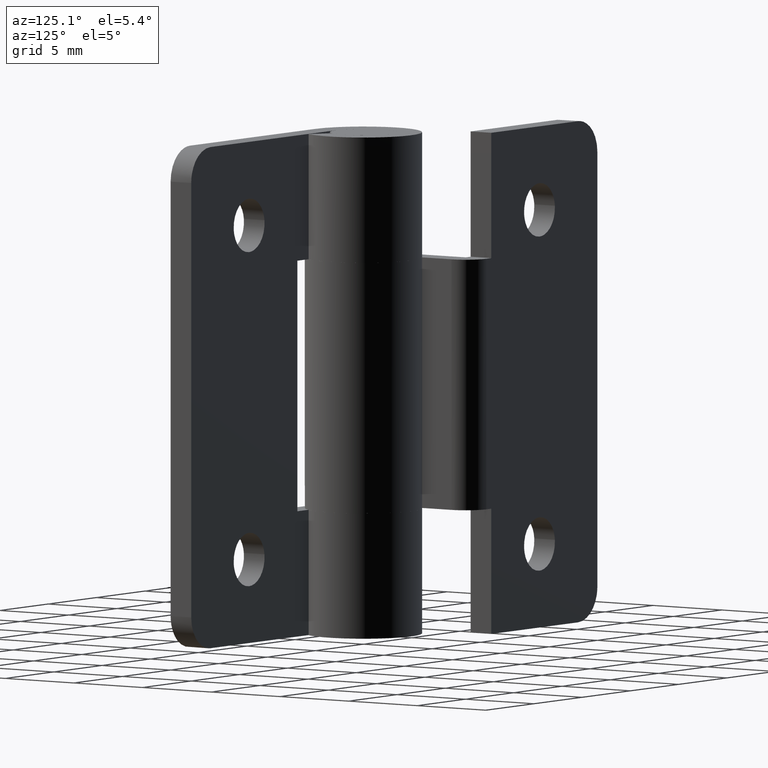
[diagram: clean part render]
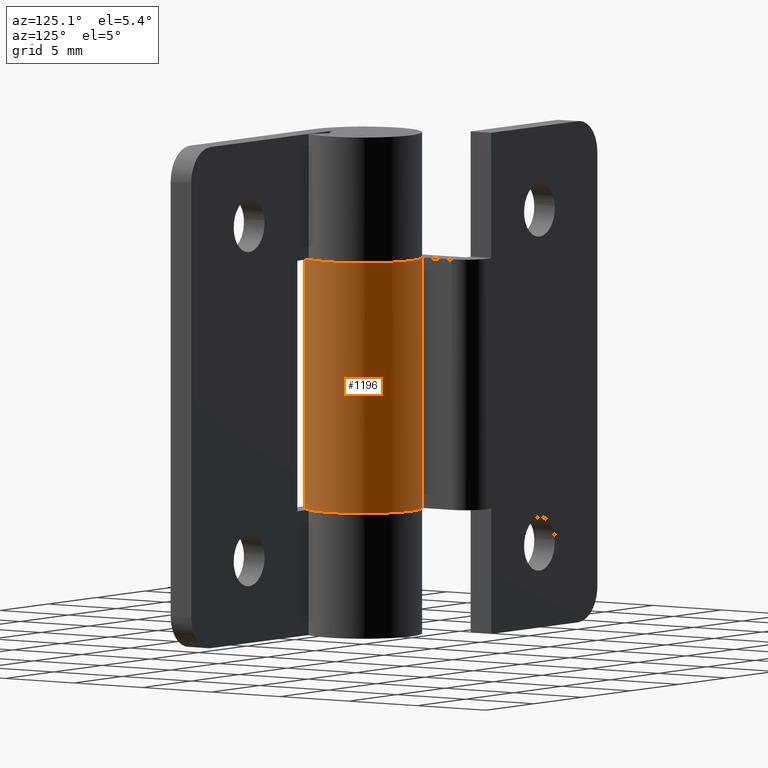
[diagram: same view with one face highlighted and labeled with its STEP entity id]
A machine part, auxiliary view. The second image highlights one B-rep face of the part: STEP entity #1196.
In plain terms, the highlighted face is a freeform B-spline surface patch.
Its self-contained STEP definition (entity closure, byte-faithful):
#734=CARTESIAN_POINT('',(-1.950000557143180,2.906456747853360,7.500000000000000));
#735=VERTEX_POINT('',#734);
#741=CARTESIAN_POINT('',(-3.499999000000000,-4.286121E-016,7.500000000000000));
#742=VERTEX_POINT('',#741);
#743=CARTESIAN_POINT('',(-1.950000557143179,2.906456747853353,7.500000000000000));
#744=CARTESIAN_POINT('',(0.319327331446173,4.428994680116801,7.500000000000001));
#745=CARTESIAN_POINT('',(2.346771502704649,2.596662572244296,7.500000000000000));
#746=CARTESIAN_POINT('',(4.374215673963122,0.764330464371792,7.500000000000001));
#747=CARTESIAN_POINT('',(3.088283746678855,-1.646965846640486,7.500000000000000));
#748=CARTESIAN_POINT('',(1.802351819394588,-4.058262157652765,7.500000000000001));
#749=CARTESIAN_POINT('',(-0.848823590302704,-3.395510493658741,7.500000000000000));
#750=CARTESIAN_POINT('',(-3.499999000000000,-2.732758829664717,7.500000000000001));
#751=CARTESIAN_POINT('',(-3.499999000000000,0.0,7.500000000000000));
#759=(BOUNDED_CURVE()B_SPLINE_CURVE(2,(#743,#744,#745,#746,#747,#748,#749,#750,#751),.UNSPECIFIED.,.F.,.U.)B_SPLINE_CURVE_WITH_KNOTS((3,2,2,2,3),(0.0,0.250000000000000,0.500000000000000,0.750000000000000,1.0),.UNSPECIFIED.)CURVE()GEOMETRIC_REPRESENTATION_ITEM()RATIONAL_B_SPLINE_CURVE((1.0,0.788200829450374,1.0,0.788200829450374,1.0,0.788200829450374,1.0,0.788200829450374,1.0))REPRESENTATION_ITEM(''));
#760=EDGE_CURVE('',#735,#742,#759,.T.);
#812=CARTESIAN_POINT('',(-3.499999000000000,0.0,22.500000000000000));
#813=VERTEX_POINT('',#812);
#819=CARTESIAN_POINT('',(-1.950000557143180,2.906456747853360,22.500000000000000));
#820=VERTEX_POINT('',#819);
#821=CARTESIAN_POINT('',(-3.499999000000000,0.0,22.500000000000000));
#822=CARTESIAN_POINT('',(-3.499999000000000,-2.732758829664714,22.500000000000004));
#823=CARTESIAN_POINT('',(-0.848823590302708,-3.395510493658741,22.500000000000000));
#824=CARTESIAN_POINT('',(1.802351819394584,-4.058262157652766,22.500000000000004));
#825=CARTESIAN_POINT('',(3.088283746678854,-1.646965846640489,22.500000000000000));
#826=CARTESIAN_POINT('',(4.374215673963124,0.764330464371790,22.500000000000004));
#827=CARTESIAN_POINT('',(2.346771502704650,2.596662572244296,22.500000000000000));
#828=CARTESIAN_POINT('',(0.319327331446177,4.428994680116800,22.500000000000004));
#829=CARTESIAN_POINT('',(-1.950000557143176,2.906456747853356,22.500000000000000));
#837=(BOUNDED_CURVE()B_SPLINE_CURVE(2,(#821,#822,#823,#824,#825,#826,#827,#828,#829),.UNSPECIFIED.,.F.,.U.)B_SPLINE_CURVE_WITH_KNOTS((3,2,2,2,3),(0.0,0.250000000000000,0.500000000000000,0.750000000000000,1.0),.UNSPECIFIED.)CURVE()GEOMETRIC_REPRESENTATION_ITEM()RATIONAL_B_SPLINE_CURVE((1.0,0.788200829450374,1.0,0.788200829450374,1.0,0.788200829450374,1.0,0.788200829450374,1.0))REPRESENTATION_ITEM(''));
#838=EDGE_CURVE('',#813,#820,#837,.T.);
#1150=CARTESIAN_POINT('',(-3.499999000000000,0.0,22.500000000000000));
#1151=CARTESIAN_POINT('',(-3.499999000000000,-4.286121E-016,7.500000000000000));
#1152=QUASI_UNIFORM_CURVE('',1,(#1150,#1151),.UNSPECIFIED.,.F.,.U.);
#1153=EDGE_CURVE('',#813,#742,#1152,.T.);
#1164=CARTESIAN_POINT('',(-3.498562629029877,0.100262309750720,22.875000000000000));
#1165=CARTESIAN_POINT('',(-3.498562629029877,0.100262309750720,7.115625000000000));
#1166=CARTESIAN_POINT('',(-3.625364992771855,-4.324391502467664,22.875000000000004));
#1167=CARTESIAN_POINT('',(-3.625364992771855,-4.324391502467664,7.115625000000000));
#1168=CARTESIAN_POINT('',(0.709264340825263,-3.427380500445595,22.875000000000000));
#1169=CARTESIAN_POINT('',(0.709264340825263,-3.427380500445595,7.115625000000000));
#1170=CARTESIAN_POINT('',(5.043893674422381,-2.530369498423525,22.875000000000004));
#1171=CARTESIAN_POINT('',(5.043893674422381,-2.530369498423525,7.115625000000000));
#1172=CARTESIAN_POINT('',(3.171427401937915,1.480554367201123,22.875000000000000));
#1173=CARTESIAN_POINT('',(3.171427401937915,1.480554367201123,7.115625000000000));
#1174=CARTESIAN_POINT('',(1.298961129453449,5.491478232825772,22.875000000000004));
#1175=CARTESIAN_POINT('',(1.298961129453449,5.491478232825772,7.115625000000000));
#1176=CARTESIAN_POINT('',(-2.172027324413957,2.744501831298376,22.875000000000000));
#1177=CARTESIAN_POINT('',(-2.172027324413957,2.744501831298376,7.115625000000000));
#1185=(BOUNDED_SURFACE()B_SPLINE_SURFACE(1,2,((#1164,#1166,#1168,#1170,#1172,#1174,#1176),(#1165,#1167,#1169,#1171,#1173,#1175,#1177)),.UNSPECIFIED.,.F.,.F.,.U.)B_SPLINE_SURFACE_WITH_KNOTS((2,2),(3,2,2,3),(0.0,15.759375000000000),(0.0,6.777913599840503,13.555827199681010,20.333740799521511),.UNSPECIFIED.)GEOMETRIC_REPRESENTATION_ITEM()RATIONAL_B_SPLINE_SURFACE(((1.0,0.620235491268260,1.0,0.620235491268260,1.0,0.620235491268260,1.0),(1.0,0.620235491268260,1.0,0.620235491268260,1.0,0.620235491268260,1.0)))REPRESENTATION_ITEM('')SURFACE());
#1186=ORIENTED_EDGE('',*,*,#760,.F.);
#1187=CARTESIAN_POINT('',(-1.950000557143180,2.906456747853360,22.500000000000000));
#1188=CARTESIAN_POINT('',(-1.950000557143180,2.906456747853360,7.500000000000000));
#1189=QUASI_UNIFORM_CURVE('',1,(#1187,#1188),.UNSPECIFIED.,.F.,.U.);
#1190=EDGE_CURVE('',#820,#735,#1189,.T.);
#1191=ORIENTED_EDGE('',*,*,#1190,.F.);
#1192=ORIENTED_EDGE('',*,*,#838,.F.);
#1193=ORIENTED_EDGE('',*,*,#1153,.T.);
#1194=EDGE_LOOP('',(#1186,#1191,#1192,#1193));
#1195=FACE_OUTER_BOUND('',#1194,.T.);
#1196=ADVANCED_FACE('',(#1195),#1185,.T.);